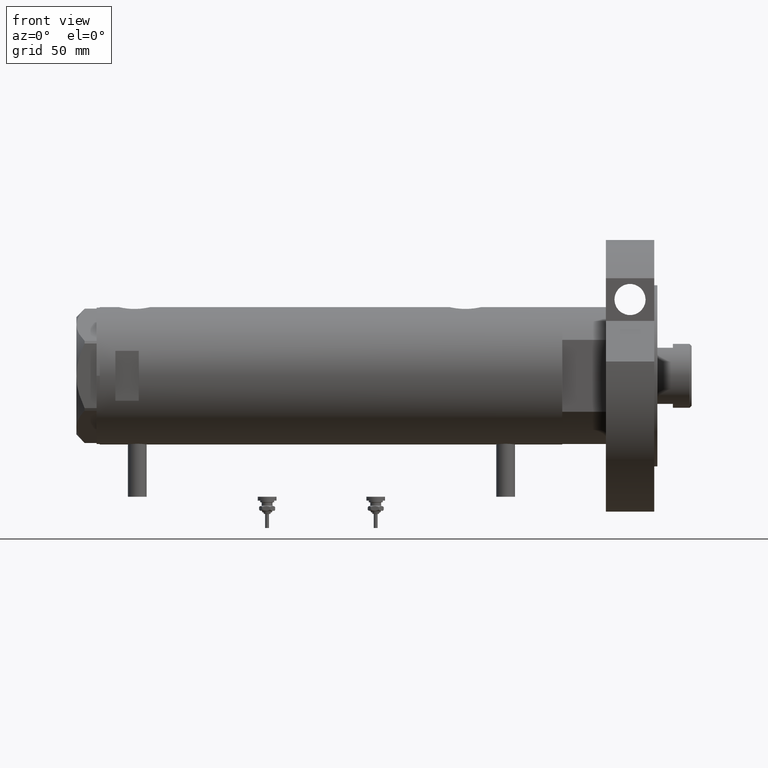
[diagram: clean part render]
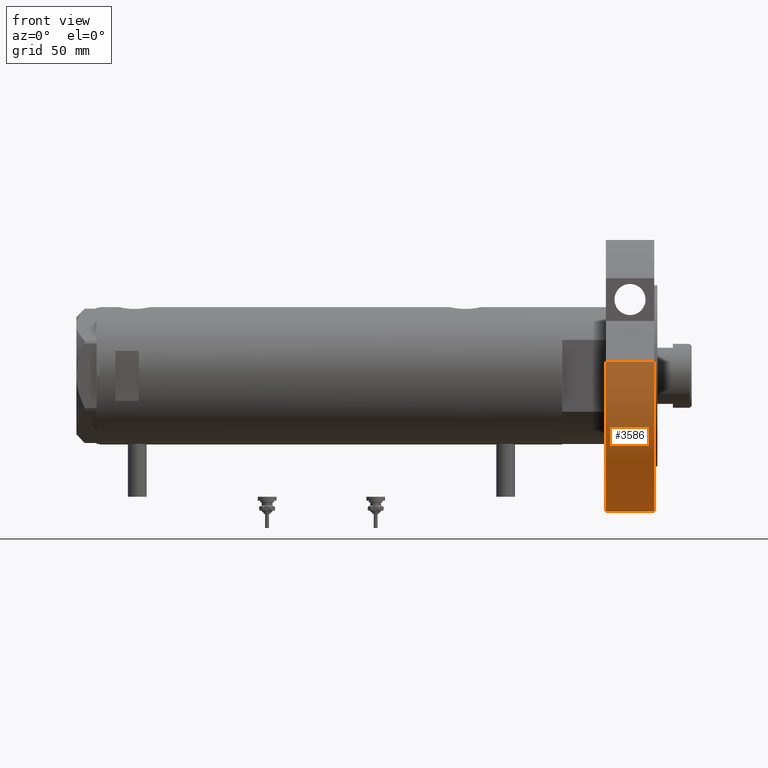
[diagram: same view with one face highlighted and labeled with its STEP entity id]
A machine part, front view. The second image highlights one B-rep face of the part: STEP entity #3586.
In plain terms, the highlighted cylindrical surface (partial cylindrical patch) has radius 87 mm, axis along (-1, -0, 0).
Its self-contained STEP definition (entity closure, byte-faithful):
#164 = CARTESIAN_POINT ( 'NONE',  ( -87.00000000000000000, 0.000000000000000000, 31.00000000000000000 ) ) ;
#166 = DIRECTION ( 'NONE',  ( 0.000000000000000000, 0.000000000000000000, 1.000000000000000000 ) ) ;
#312 = AXIS2_PLACEMENT_3D ( 'NONE', #4187, #4230, #3089 ) ;
#365 = CARTESIAN_POINT ( 'NONE',  ( -87.00000000000000000, 0.000000000000000000, 31.00000000000000000 ) ) ;
#641 = ORIENTED_EDGE ( 'NONE', *, *, #2278, .F. ) ;
#673 = CARTESIAN_POINT ( 'NONE',  ( 9.196694222441541555, 86.51254715576759224, 0.000000000000000000 ) ) ;
#1091 = ORIENTED_EDGE ( 'NONE', *, *, #4961, .F. ) ;
#1286 = VERTEX_POINT ( 'NONE', #164 ) ;
#1554 = CARTESIAN_POINT ( 'NONE',  ( 9.196694222441541555, 86.51254715576759224, 31.00000000000000000 ) ) ;
#1939 = VERTEX_POINT ( 'NONE', #2625 ) ;
#2095 = LINE ( 'NONE', #365, #6056 ) ;
#2278 = EDGE_CURVE ( 'NONE', #5180, #1286, #3250, .T. ) ;
#2625 = CARTESIAN_POINT ( 'NONE',  ( -87.00000000000000000, 0.000000000000000000, 0.000000000000000000 ) ) ;
#2702 = DIRECTION ( 'NONE',  ( -0.000000000000000000, -0.000000000000000000, -1.000000000000000000 ) ) ;
#2962 = CARTESIAN_POINT ( 'NONE',  ( 0.000000000000000000, 0.000000000000000000, 31.00000000000000000 ) ) ;
#3032 = AXIS2_PLACEMENT_3D ( 'NONE', #5390, #166, #4826 ) ;
#3089 = DIRECTION ( 'NONE',  ( -1.000000000000000000, 0.000000000000000000, 0.000000000000000000 ) ) ;
#3193 = ORIENTED_EDGE ( 'NONE', *, *, #5336, .T. ) ;
#3250 = CIRCLE ( 'NONE', #6039, 87.00000000000000000 ) ;
#3539 = FACE_OUTER_BOUND ( 'NONE', #4733, .T. ) ;
#3586 = ADVANCED_FACE ( 'NONE', ( #3539 ), #5860, .T. ) ;
#3878 = CIRCLE ( 'NONE', #3032, 87.00000000000000000 ) ;
#3879 = VERTEX_POINT ( 'NONE', #4708 ) ;
#4187 = CARTESIAN_POINT ( 'NONE',  ( 0.000000000000000000, 0.000000000000000000, 31.00000000000000000 ) ) ;
#4230 = DIRECTION ( 'NONE',  ( -0.000000000000000000, -0.000000000000000000, -1.000000000000000000 ) ) ;
#4588 = ORIENTED_EDGE ( 'NONE', *, *, #4846, .F. ) ;
#4708 = CARTESIAN_POINT ( 'NONE',  ( 9.196694222441541555, 86.51254715576759224, 0.000000000000000000 ) ) ;
#4733 = EDGE_LOOP ( 'NONE', ( #4588, #641, #1091, #3193 ) ) ;
#4801 = DIRECTION ( 'NONE',  ( -0.000000000000000000, -0.000000000000000000, 1.000000000000000000 ) ) ;
#4826 = DIRECTION ( 'NONE',  ( 1.000000000000000000, 0.000000000000000000, 0.000000000000000000 ) ) ;
#4846 = EDGE_CURVE ( 'NONE', #1286, #1939, #2095, .T. ) ;
#4961 = EDGE_CURVE ( 'NONE', #3879, #5180, #6549, .T. ) ;
#5085 = VECTOR ( 'NONE', #4801, 1000.000000000000000 ) ;
#5180 = VERTEX_POINT ( 'NONE', #1554 ) ;
#5336 = EDGE_CURVE ( 'NONE', #3879, #1939, #3878, .T. ) ;
#5390 = CARTESIAN_POINT ( 'NONE',  ( 0.000000000000000000, 0.000000000000000000, 0.000000000000000000 ) ) ;
#5860 = CYLINDRICAL_SURFACE ( 'NONE', #312, 87.00000000000000000 ) ;
#6039 = AXIS2_PLACEMENT_3D ( 'NONE', #2962, #6320, #7541 ) ;
#6056 = VECTOR ( 'NONE', #2702, 1000.000000000000000 ) ;
#6320 = DIRECTION ( 'NONE',  ( 0.000000000000000000, 0.000000000000000000, 1.000000000000000000 ) ) ;
#6549 = LINE ( 'NONE', #673, #5085 ) ;
#7541 = DIRECTION ( 'NONE',  ( 1.000000000000000000, 0.000000000000000000, 0.000000000000000000 ) ) ;